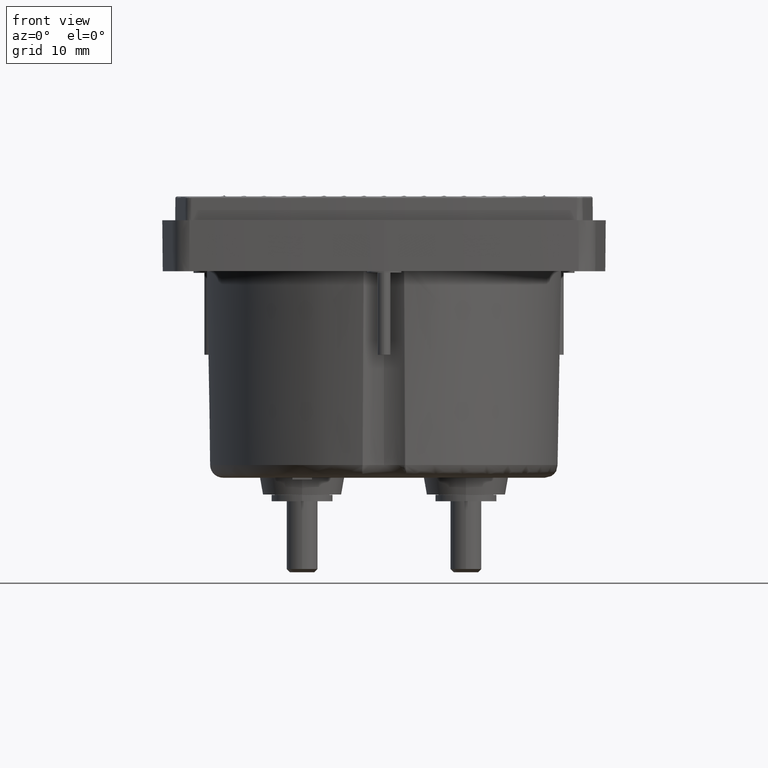
[diagram: clean part render]
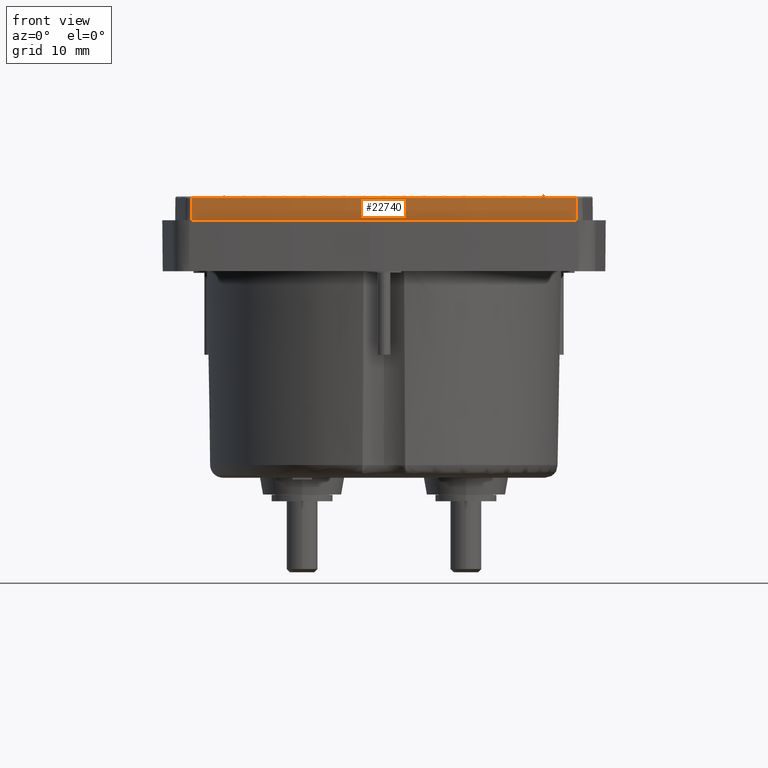
[diagram: same view with one face highlighted and labeled with its STEP entity id]
A machine part, front view. The second image highlights one B-rep face of the part: STEP entity #22740.
In plain terms, the highlighted conical surface has half-angle 0.5 deg.
Its self-contained STEP definition (entity closure, byte-faithful):
#1322 = CARTESIAN_POINT ( 'NONE',  ( -0.6061645335776910670, -1.424245827326490188, 0.1456688976378031353 ) ) ;
#4237 = CARTESIAN_POINT ( 'NONE',  ( 1.747021808722267977, -1.424245827326490188, 0.1456688976378031353 ) ) ;
#5316 = EDGE_CURVE ( 'NONE', #18540, #39642, #31263, .T. ) ;
#8170 = VERTEX_POINT ( 'NONE', #33178 ) ;
#9037 = CARTESIAN_POINT ( 'NONE',  ( 0.5704286375722913416, 10.01540576306748065, 0.4311878596013700715 ) ) ;
#9283 = CARTESIAN_POINT ( 'NONE',  ( -0.6059096030555629619, -1.421767216686513846, 0.4311878596016558984 ) ) ;
#12467 = DIRECTION ( 'NONE',  ( 1.000000000000000000, 0.000000000000000000, 0.000000000000000000 ) ) ;
#12948 = DIRECTION ( 'NONE',  ( 0.000000000000000000, 0.000000000000000000, 1.000000000000000000 ) ) ;
#14078 = ORIENTED_EDGE ( 'NONE', *, *, #5316, .T. ) ;
#15524 = ORIENTED_EDGE ( 'NONE', *, *, #17279, .F. ) ;
#15713 = VECTOR ( 'NONE', #35691, 39.37007874015748854 ) ;
#16306 = AXIS2_PLACEMENT_3D ( 'NONE', #30754, #22175, #37152 ) ;
#17279 = EDGE_CURVE ( 'NONE', #18540, #8170, #22278, .T. ) ;
#18540 = VERTEX_POINT ( 'NONE', #9283 ) ;
#18647 = CARTESIAN_POINT ( 'NONE',  ( 0.5704286375722913416, 10.01540576306748065, 0.2952751968502389524 ) ) ;
#20237 = CIRCLE ( 'NONE', #16306, 11.49869440560759948 ) ;
#21980 = EDGE_CURVE ( 'NONE', #39642, #26914, #20237, .T. ) ;
#22175 = DIRECTION ( 'NONE',  ( -0.000000000000000000, 1.484868573607373907E-18, 1.000000000000000000 ) ) ;
#22278 = CIRCLE ( 'NONE', #28545, 11.49750831376720406 ) ;
#22306 = FACE_OUTER_BOUND ( 'NONE', #24384, .T. ) ;
#22740 = ADVANCED_FACE ( 'NONE', ( #22306 ), #46796, .T. ) ;
#23344 = ORIENTED_EDGE ( 'NONE', *, *, #45057, .T. ) ;
#24140 = LINE ( 'NONE', #4237, #40244 ) ;
#24384 = EDGE_LOOP ( 'NONE', ( #23344, #15524, #14078, #28150 ) ) ;
#26547 = DIRECTION ( 'NONE',  ( -0.0008928332229089133276, 0.008680741354655211947, 0.9999619230642582401 ) ) ;
#26914 = VERTEX_POINT ( 'NONE', #35574 ) ;
#28150 = ORIENTED_EDGE ( 'NONE', *, *, #21980, .T. ) ;
#28545 = AXIS2_PLACEMENT_3D ( 'NONE', #9037, #12948, #12467 ) ;
#30754 = CARTESIAN_POINT ( 'NONE',  ( 0.5704286375722913416, 10.01540576306748065, 0.2952751968503724012 ) ) ;
#31263 = LINE ( 'NONE', #1322, #15713 ) ;
#32688 = AXIS2_PLACEMENT_3D ( 'NONE', #18647, #48596, #35595 ) ;
#33178 = CARTESIAN_POINT ( 'NONE',  ( 1.746766878200133988, -1.421767216686521840, 0.4311878596016487930 ) ) ;
#35574 = CARTESIAN_POINT ( 'NONE',  ( 1.746888230161710798, -1.422947084285836716, 0.2952751968500917368 ) ) ;
#35595 = DIRECTION ( 'NONE',  ( 0.000000000000000000, 1.000000000000000000, -2.969737147214747428E-18 ) ) ;
#35691 = DIRECTION ( 'NONE',  ( -0.0008928332229089172307, -0.008680741354655211947, -0.9999619230642582401 ) ) ;
#37152 = DIRECTION ( 'NONE',  ( 7.103611256137676308E-15, 1.000000000000000000, -2.969737147214747428E-18 ) ) ;
#39642 = VERTEX_POINT ( 'NONE', #47340 ) ;
#40244 = VECTOR ( 'NONE', #26547, 39.37007874015748854 ) ;
#45057 = EDGE_CURVE ( 'NONE', #26914, #8170, #24140, .T. ) ;
#46796 = CONICAL_SURFACE ( 'NONE', #32688, 11.49869440560759948, 0.008726646250024753734 ) ;
#47340 = CARTESIAN_POINT ( 'NONE',  ( -0.6060309550171338877, -1.422947084285822728, 0.2952751968500917368 ) ) ;
#48596 = DIRECTION ( 'NONE',  ( 0.000000000000000000, -1.484868573607373907E-18, -1.000000000000000000 ) ) ;